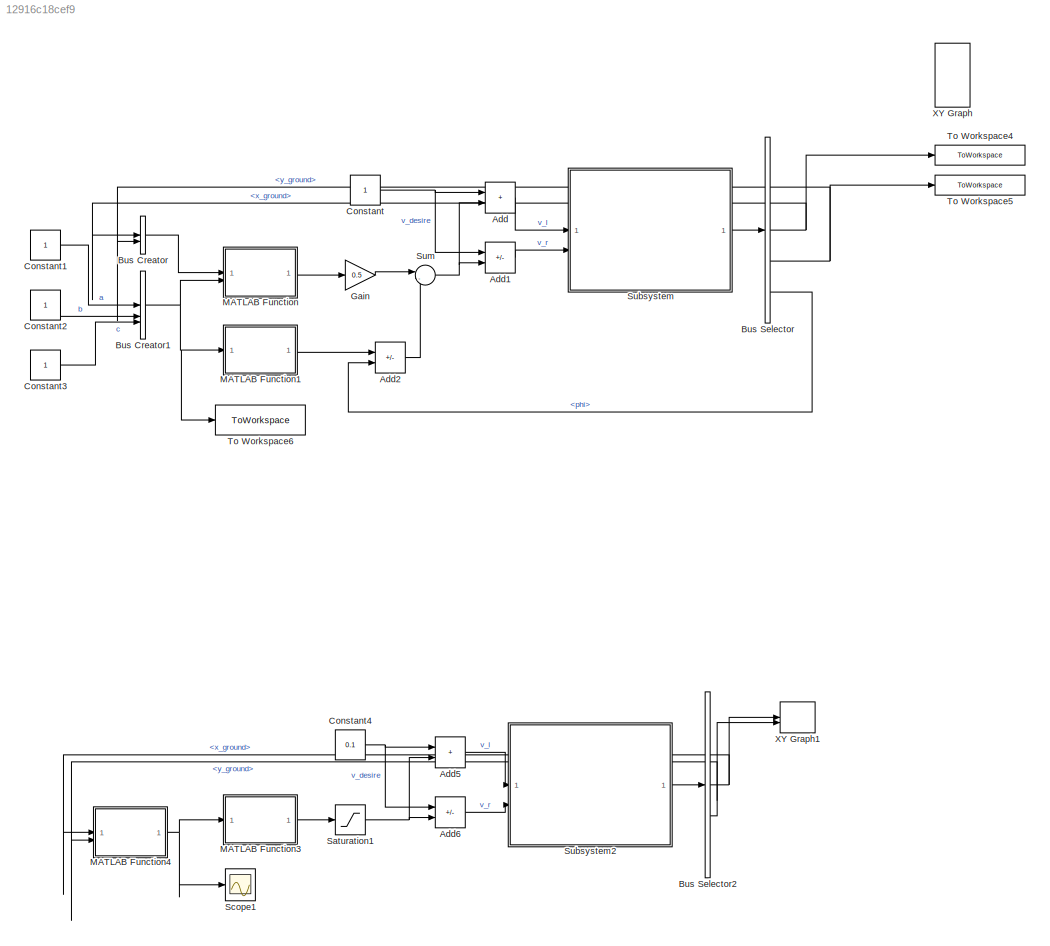
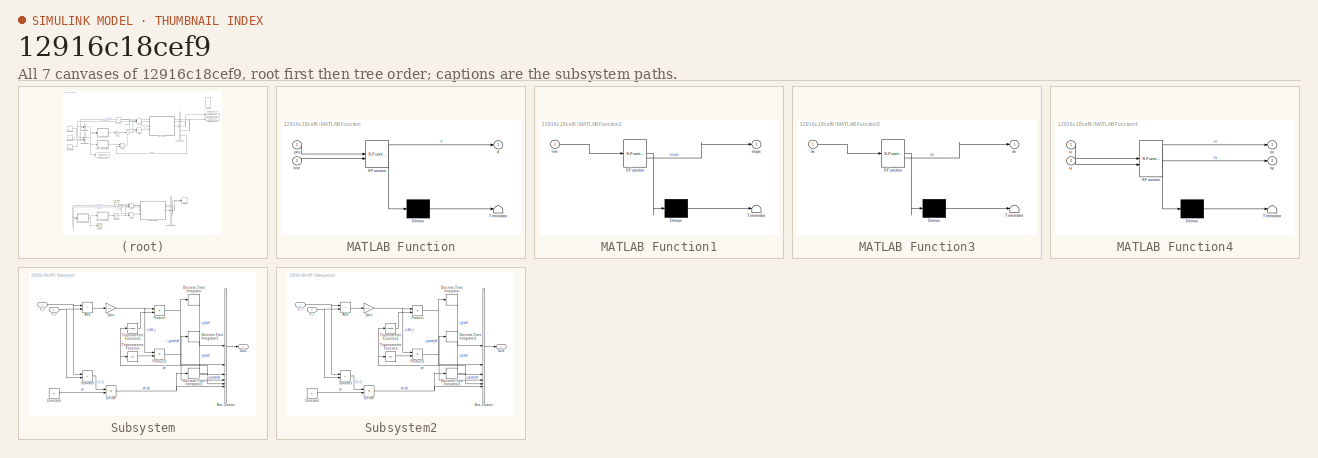
[diagram: thumbnail index - all 7 canvases of the model, root first then tree order]
MODEL slx_12916c18cef9
KIND model
CONFIG AbsTol = auto
CONFIG EnableMultiTasking = off
CONFIG FixedStep = auto
CONFIG MaxStep = auto
CONFIG MinStep = auto
CONFIG RelTol = 1e-3
CONFIG SampleTimeConstraint = Unconstrained
CONFIG SolverName = VariableStepAuto
CONFIG StartTime = 0.0
CONFIG StopTime = 1000
BLOCK [Sum] Add
  IconShape = rectangular
BLOCK [Sum] Add1
  IconShape = rectangular
  Inputs = +-
BLOCK [Sum] Add2
  IconShape = rectangular
  Inputs = +-
BLOCK [Sum] Add5
  IconShape = rectangular
BLOCK [Sum] Add6
  IconShape = rectangular
  Inputs = +-
BLOCK [BusCreator] Bus Creator
  DisplayOption = bar
  InheritFromInputs = on
  Inputs = 2
BLOCK [BusCreator] Bus Creator1
  DisplayOption = bar
  InheritFromInputs = on
  Inputs = 3
BLOCK [BusSelector] Bus Selector
  OutputSignals = x_ground,y_ground,x_ground_dot,y_ground_dot,phi,phi_dot
BLOCK [BusSelector] Bus Selector2
  OutputSignals = x_ground,y_ground,x_ground_dot,y_ground_dot,phi,phi_dot
BLOCK [Constant] Constant
BLOCK [Constant] Constant1
BLOCK [Constant] Constant2
BLOCK [Constant] Constant3
BLOCK [Constant] Constant4
  Value = 0.1
BLOCK [Gain] Gain
  Gain = 0.5
BLOCK [SubSystem] MATLAB Function
  ErrorFcn = Stateflow.Translate.translate
  LibrarySourceBlock = simulink/User-Defined\nFunctions/MATLAB Function
  PermitHierarchicalResolution = ExplicitOnly
  SFBlockType = MATLAB Function
  TreatAsAtomicUnit = on
BLOCK [Demux] MATLAB Function/ Demux 
  Outputs = 1
BLOCK [S-Function] MATLAB Function/ SFunction 
  EnableBusSupport = on
  FunctionName = sf_sfun
  PortCounts = [2 2]
  SFcnIsStateOwnerBlock = off
  SFunctionDeploymentMode = off
  Tag = Stateflow S-Function 2
BLOCK [Terminator] MATLAB Function/ Terminator 
BLOCK [Outport] MATLAB Function/d
BLOCK [Inport] MATLAB Function/line
  Port = 2
BLOCK [Inport] MATLAB Function/pos
BLOCK [SubSystem] MATLAB Function1
  ErrorFcn = Stateflow.Translate.translate
  LibrarySourceBlock = simulink/User-Defined\nFunctions/MATLAB Function
  PermitHierarchicalResolution = ExplicitOnly
  SFBlockType = MATLAB Function
  TreatAsAtomicUnit = on
BLOCK [Demux] MATLAB Function1/ Demux 
  Outputs = 1
BLOCK [S-Function] MATLAB Function1/ SFunction 
  EnableBusSupport = on
  FunctionName = sf_sfun
  PortCounts = [1 2]
  SFcnIsStateOwnerBlock = off
  SFunctionDeploymentMode = off
  Tag = Stateflow S-Function 1
BLOCK [Terminator] MATLAB Function1/ Terminator 
BLOCK [Inport] MATLAB Function1/line
BLOCK [Outport] MATLAB Function1/slope
BLOCK [SubSystem] MATLAB Function3
  ErrorFcn = Stateflow.Translate.translate
  LibrarySourceBlock = simulink/User-Defined\nFunctions/MATLAB Function
  PermitHierarchicalResolution = ExplicitOnly
  SFBlockType = MATLAB Function
  TreatAsAtomicUnit = on
BLOCK [Demux] MATLAB Function3/ Demux 
  Outputs = 1
BLOCK [S-Function] MATLAB Function3/ SFunction 
  EnableBusSupport = on
  FunctionName = sf_sfun
  PortCounts = [1 2]
  SFcnIsStateOwnerBlock = off
  SFunctionDeploymentMode = off
  Tag = Stateflow S-Function 4
BLOCK [Terminator] MATLAB Function3/ Terminator 
BLOCK [Outport] MATLAB Function3/dv
BLOCK [Inport] MATLAB Function3/dx
BLOCK [SubSystem] MATLAB Function4
  ErrorFcn = Stateflow.Translate.translate
  LibrarySourceBlock = simulink/User-Defined\nFunctions/MATLAB Function
  PermitHierarchicalResolution = ExplicitOnly
  SFBlockType = MATLAB Function
  TreatAsAtomicUnit = on
BLOCK [Demux] MATLAB Function4/ Demux 
  Outputs = 1
BLOCK [S-Function] MATLAB Function4/ SFunction 
  EnableBusSupport = on
  FunctionName = sf_sfun
  PortCounts = [2 3]
  SFcnIsStateOwnerBlock = off
  SFunctionDeploymentMode = off
  Tag = Stateflow S-Function 5
BLOCK [Terminator] MATLAB Function4/ Terminator 
BLOCK [Inport] MATLAB Function4/ix
BLOCK [Inport] MATLAB Function4/iy
  Port = 2
BLOCK [Outport] MATLAB Function4/ox
BLOCK [Outport] MATLAB Function4/oy
  Port = 2
BLOCK [Saturate] Saturation1
  LowerLimit = -0.2
  UpperLimit = 0.2
BLOCK [Scope] Scope1
  Floating = off
  NumInputPorts = 1
  ScopeSpecificationString = Simulink.scopes.TimeScopeBlockCfg('CurrentConfiguration', extmgr.ConfigurationSet(extmgr.Configuration('Core','General UI',true,'FigureColor',[1 1 1]),extmgr.Configuration('Core','Source UI',true),extmgr.Configuration('Sources','WiredSimulink',true,'DataLoggingVariableName','ScopeData1'),extmgr.Configuration('Visuals','Time Domain',true,'SerializedDisplays',{struct('MinYLimReal','-0.04986','MaxYLi...<+1645ch>
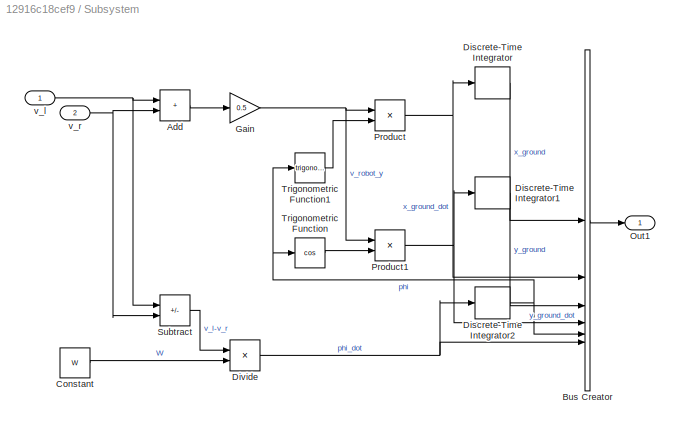
BLOCK [SubSystem] Subsystem
BLOCK [Sum] Subsystem/Add
  IconShape = rectangular
BLOCK [BusCreator] Subsystem/Bus Creator
  DisplayOption = bar
  InheritFromInputs = on
  Inputs = 6
BLOCK [Constant] Subsystem/Constant
  Value = W
  VectorParams1D = off
BLOCK [DiscreteIntegrator] Subsystem/Discrete-Time Integrator
  ICPrevOutput = DiscIntNeverNeededParam
  ICPrevScaledInput = DiscIntNeverNeededParam
  InitialCondition = x_init
  InitialConditionSetting = Auto
  SampleTime = Ts
BLOCK [DiscreteIntegrator] Subsystem/Discrete-Time Integrator1
  ICPrevOutput = DiscIntNeverNeededParam
  ICPrevScaledInput = DiscIntNeverNeededParam
  InitialCondition = y_init
  InitialConditionSetting = Auto
  SampleTime = Ts
BLOCK [DiscreteIntegrator] Subsystem/Discrete-Time Integrator2
  ICPrevOutput = DiscIntNeverNeededParam
  ICPrevScaledInput = DiscIntNeverNeededParam
  InitialCondition = phi_init
  InitialConditionSetting = Auto
  SampleTime = Ts
BLOCK [Product] Subsystem/Divide
  Inputs = */
BLOCK [Gain] Subsystem/Gain
  Gain = 0.5
BLOCK [Outport] Subsystem/Out1
BLOCK [Product] Subsystem/Product
BLOCK [Product] Subsystem/Product1
BLOCK [Sum] Subsystem/Subtract
  IconShape = rectangular
  Inputs = +-
BLOCK [Trigonometry] Subsystem/Trigonometric Function
  Operator = cos
BLOCK [Trigonometry] Subsystem/Trigonometric Function1
BLOCK [Inport] Subsystem/v_l
BLOCK [Inport] Subsystem/v_r
  Port = 2
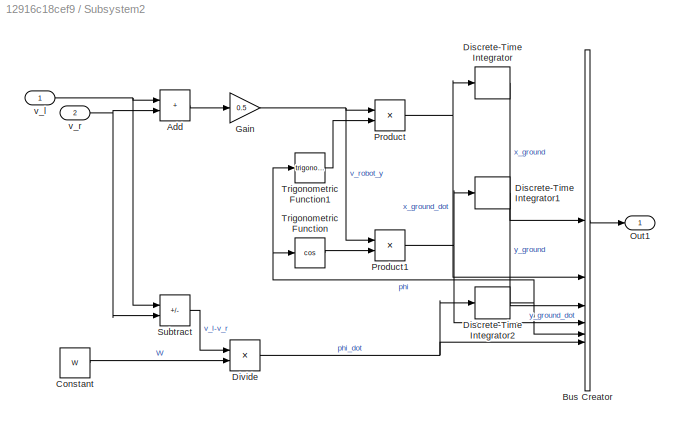
BLOCK [SubSystem] Subsystem2
BLOCK [Sum] Subsystem2/Add
  IconShape = rectangular
BLOCK [BusCreator] Subsystem2/Bus Creator
  DisplayOption = bar
  InheritFromInputs = on
  Inputs = 6
BLOCK [Constant] Subsystem2/Constant
  Value = W
  VectorParams1D = off
BLOCK [DiscreteIntegrator] Subsystem2/Discrete-Time Integrator
  ICPrevOutput = DiscIntNeverNeededParam
  ICPrevScaledInput = DiscIntNeverNeededParam
  InitialCondition = x_init
  InitialConditionSetting = Auto
  SampleTime = Ts
BLOCK [DiscreteIntegrator] Subsystem2/Discrete-Time Integrator1
  ICPrevOutput = DiscIntNeverNeededParam
  ICPrevScaledInput = DiscIntNeverNeededParam
  InitialCondition = y_init
  InitialConditionSetting = Auto
  SampleTime = Ts
BLOCK [DiscreteIntegrator] Subsystem2/Discrete-Time Integrator2
  ICPrevOutput = DiscIntNeverNeededParam
  ICPrevScaledInput = DiscIntNeverNeededParam
  InitialCondition = phi_init
  InitialConditionSetting = Auto
  SampleTime = Ts
BLOCK [Product] Subsystem2/Divide
  Inputs = */
BLOCK [Gain] Subsystem2/Gain
  Gain = 0.5
BLOCK [Outport] Subsystem2/Out1
BLOCK [Product] Subsystem2/Product
BLOCK [Product] Subsystem2/Product1
BLOCK [Sum] Subsystem2/Subtract
  IconShape = rectangular
  Inputs = +-
BLOCK [Trigonometry] Subsystem2/Trigonometric Function
  Operator = cos
BLOCK [Trigonometry] Subsystem2/Trigonometric Function1
BLOCK [Inport] Subsystem2/v_l
BLOCK [Inport] Subsystem2/v_r
  Port = 2
BLOCK [Sum] Sum
  Inputs = |-+
BLOCK [ToWorkspace] To Workspace4
  FixptAsFi = on
  MaxDataPoints = inf
  SampleTime = -1
  SaveFormat = Timeseries
  VariableName = x_out1
BLOCK [ToWorkspace] To Workspace5
  FixptAsFi = on
  MaxDataPoints = inf
  SampleTime = -1
  SaveFormat = Timeseries
  VariableName = y_out1
BLOCK [ToWorkspace] To Workspace6
  FixptAsFi = on
  MaxDataPoints = inf
  SampleTime = -1
  SaveFormat = Timeseries
  VariableName = lane1
BLOCK [Record] XY Graph
  Commented = on
  CompatibilityTag = XY
  FileSettingsInternal = {"entries":[{"content":{"excelSettings":{"content":{},"type":"Streamout.ExcelSettings"}},"type":"Streamout.FileSettingStorage","uuid":"a2125230-03b0-49b1-833b-7e9c330bf374"}],"packageUris":["http://schema.mathworks.com/mf0/streamout_blocks/R2020a"],"version":"1.0"}
  Layout = [1 1]
  SignalsInternal = {"entries":[{"content":{"signals":[]},"type":"RecordBlkView.InputSignals","uuid":"c80e21c9-91aa-4fa9-8ae2-555bf4a04f58"}],"packageUris":["http://schema.mathworks.com/mf0/streamout_blocks/R2020a"],"version":"1.0"}
  VisualizationBindings = {"xyplotplugin":{"info":[{"series":[],"subplotID":1}]}}
BLOCK [Record] XY Graph1
  CompatibilityTag = XY
  FileSettingsInternal = {"entries":[{"content":{"excelSettings":{"content":{},"type":"Streamout.ExcelSettings"}},"type":"Streamout.FileSettingStorage","uuid":"f29bcebd-d191-435c-943f-18207521a18d"}],"packageUris":["http://schema.mathworks.com/mf0/streamout_blocks/R2020a"],"version":"1.0"}
  Layout = [1 1]
  SignalsInternal = {"entries":[{"content":{"signals":[{"content":{"blockPath":["my_robot/XY Graph1"],"channel":[],"dimensions":[1],"domain":"my_robot/XY Graph1","lineColor":"#fe330a","plots":[1],"port":1,"sid":[""],"signalID":484,"signalName":"<x_ground>"},"type":"RecordBlkView.Signal","uuid":"17da7bfd-0c32-4a5f-9c62-40ea94651cba"},{"content":{"blockPath":["my_robot/XY Graph1"],"channel":[],"dimensions":[1],"domain"...<+371ch>
  VisualizationBindings = {"xyplotplugin":{"info":[{"series":[{"bindingParametersList":[{"parameter":"X-Axis","signalID":484,"signalName":"<x_ground>"},{"parameter":"Y-Axis","signalID":488,"signalName":"<y_ground>"}],"seriesID":905}],"subplotID":1}]}}
LINE Add1:1 -> Subsystem:2
LINE Add2:1 -> Sum:2
LINE Add5:1 -> Subsystem2:1
LINE Add6:1 -> Subsystem2:2
LINE Add:1 -> Subsystem:1
NET Bus Creator1:1 -> MATLAB Function1:1, MATLAB Function:2, To Workspace6:1
LINE Bus Creator:1 -> MATLAB Function:1
NET Bus Selector2:1 -> MATLAB Function4:1, XY Graph1:1
NET Bus Selector2:2 -> MATLAB Function4:2, XY Graph1:2
NET Bus Selector:1 -> Bus Creator:1, To Workspace4:1
NET Bus Selector:2 -> Bus Creator:2, To Workspace5:1
LINE Bus Selector:5 -> Add2:2
LINE Constant1:1 -> Bus Creator1:1
LINE Constant2:1 -> Bus Creator1:2
LINE Constant3:1 -> Bus Creator1:3
NET Constant4:1 -> Add5:1, Add6:1
NET Constant:1 -> Add1:1, Add:1
LINE Gain:1 -> Sum:1
LINE MATLAB Function1:1 -> Add2:1
LINE MATLAB Function3:1 -> Saturation1:1
NET MATLAB Function4:1 -> MATLAB Function3:1, Scope1:1
LINE MATLAB Function:1 -> Gain:1
NET Saturation1:1 -> Add5:2, Add6:2
LINE Subsystem/Add:1 -> Subsystem/Gain:1
LINE Subsystem/Bus Creator:1 -> Subsystem/Out1:1
LINE Subsystem/Constant:1 -> Subsystem/Divide:2
LINE Subsystem/Discrete-Time Integrator1:1 -> Subsystem/Bus Creator:3
NET Subsystem/Discrete-Time Integrator2:1 -> Subsystem/Bus Creator:5, Subsystem/Trigonometric Function1:1, Subsystem/Trigonometric Function:1
LINE Subsystem/Discrete-Time Integrator:1 -> Subsystem/Bus Creator:1
NET Subsystem/Divide:1 -> Subsystem/Bus Creator:6, Subsystem/Discrete-Time Integrator2:1
NET Subsystem/Gain:1 -> Subsystem/Product1:1, Subsystem/Product:1
NET Subsystem/Product1:1 -> Subsystem/Bus Creator:4, Subsystem/Discrete-Time Integrator1:1
NET Subsystem/Product:1 -> Subsystem/Bus Creator:2, Subsystem/Discrete-Time Integrator:1
LINE Subsystem/Subtract:1 -> Subsystem/Divide:1
LINE Subsystem/Trigonometric Function1:1 -> Subsystem/Product:2
LINE Subsystem/Trigonometric Function:1 -> Subsystem/Product1:2
NET Subsystem/v_l:1 -> Subsystem/Add:1, Subsystem/Subtract:1
NET Subsystem/v_r:1 -> Subsystem/Add:2, Subsystem/Subtract:2
LINE Subsystem2/Add:1 -> Subsystem2/Gain:1
LINE Subsystem2/Bus Creator:1 -> Subsystem2/Out1:1
LINE Subsystem2/Constant:1 -> Subsystem2/Divide:2
LINE Subsystem2/Discrete-Time Integrator1:1 -> Subsystem2/Bus Creator:3
NET Subsystem2/Discrete-Time Integrator2:1 -> Subsystem2/Bus Creator:5, Subsystem2/Trigonometric Function1:1, Subsystem2/Trigonometric Function:1
LINE Subsystem2/Discrete-Time Integrator:1 -> Subsystem2/Bus Creator:1
NET Subsystem2/Divide:1 -> Subsystem2/Bus Creator:6, Subsystem2/Discrete-Time Integrator2:1
NET Subsystem2/Gain:1 -> Subsystem2/Product1:1, Subsystem2/Product:1
NET Subsystem2/Product1:1 -> Subsystem2/Bus Creator:4, Subsystem2/Discrete-Time Integrator1:1
NET Subsystem2/Product:1 -> Subsystem2/Bus Creator:2, Subsystem2/Discrete-Time Integrator:1
LINE Subsystem2/Subtract:1 -> Subsystem2/Divide:1
LINE Subsystem2/Trigonometric Function1:1 -> Subsystem2/Product:2
LINE Subsystem2/Trigonometric Function:1 -> Subsystem2/Product1:2
NET Subsystem2/v_l:1 -> Subsystem2/Add:1, Subsystem2/Subtract:1
NET Subsystem2/v_r:1 -> Subsystem2/Add:2, Subsystem2/Subtract:2
LINE Subsystem2:1 -> Bus Selector2:1
LINE Subsystem:1 -> Bus Selector:1
NET Sum:1 -> Add1:2, Add:2
note: NET lines group one-source signal fan-out (src -> all destinations, sorted); 1:1 wires keep LINE
CHART MATLAB Function states=1 transitions=1
  STATE_LABEL 'eML_blk_kernel()'
  STATE_LABEL 'SCRIPT:\nfunction d = fcn(pos,line)\nx=pos(1);\ny=pos(2);\n\na=line(1);\nb=line(2);\nc=line(3);\n\nd=(a*x+b*y+c)/sqrt(a.^2+b.^2);\n\n'
CHART MATLAB Function3 states=1 transitions=1
  STATE_LABEL 'eML_blk_kernel()'
  STATE_LABEL 'SCRIPT:\nfunction dv = fcn(dx)\n\ndv=200./(1+exp(-(1/50)*dx))-100;\n'
CHART MATLAB Function4 states=1 transitions=1
  STATE_LABEL 'eML_blk_kernel()'
  STATE_LABEL 'SCRIPT:\nfunction [ox,oy] = fcn(ix,iy)\n% 椭圆路径x^2/400+y^2/100=1\n\nif ix==0\n    xx=0;\n    if iy>0\n        yy=1;\n    else\n        yy=0;\n    end \nelse\n    xx=sqrt(400/(1+4*(iy/ix)^2));\n    if ix<0\n        xx=-xx;\n    end\n    yy=xx*iy/ix;\nend\n%disp(xx);\n%disp(yy);\n\nif (ix^2)/400+iy^2/100>=1\n    ox=sqrt((ix-xx)^2+(iy-yy)^2);\nelse\n    ox=-sqrt((ix-xx)^2+(iy-yy)^2);\nend\noy=iy;\n\n'
CHART MATLAB Function1 states=1 transitions=1
  STATE_LABEL 'eML_blk_kernel()'
  STATE_LABEL 'SCRIPT:\nfunction slope = fcn(line)\nslope=atan(-line(1)/line(2));\n'
CHART  states=0 transitions=0
CHART  states=0 transitions=0
CHART  states=0 transitions=0
CHART  states=0 transitions=0
